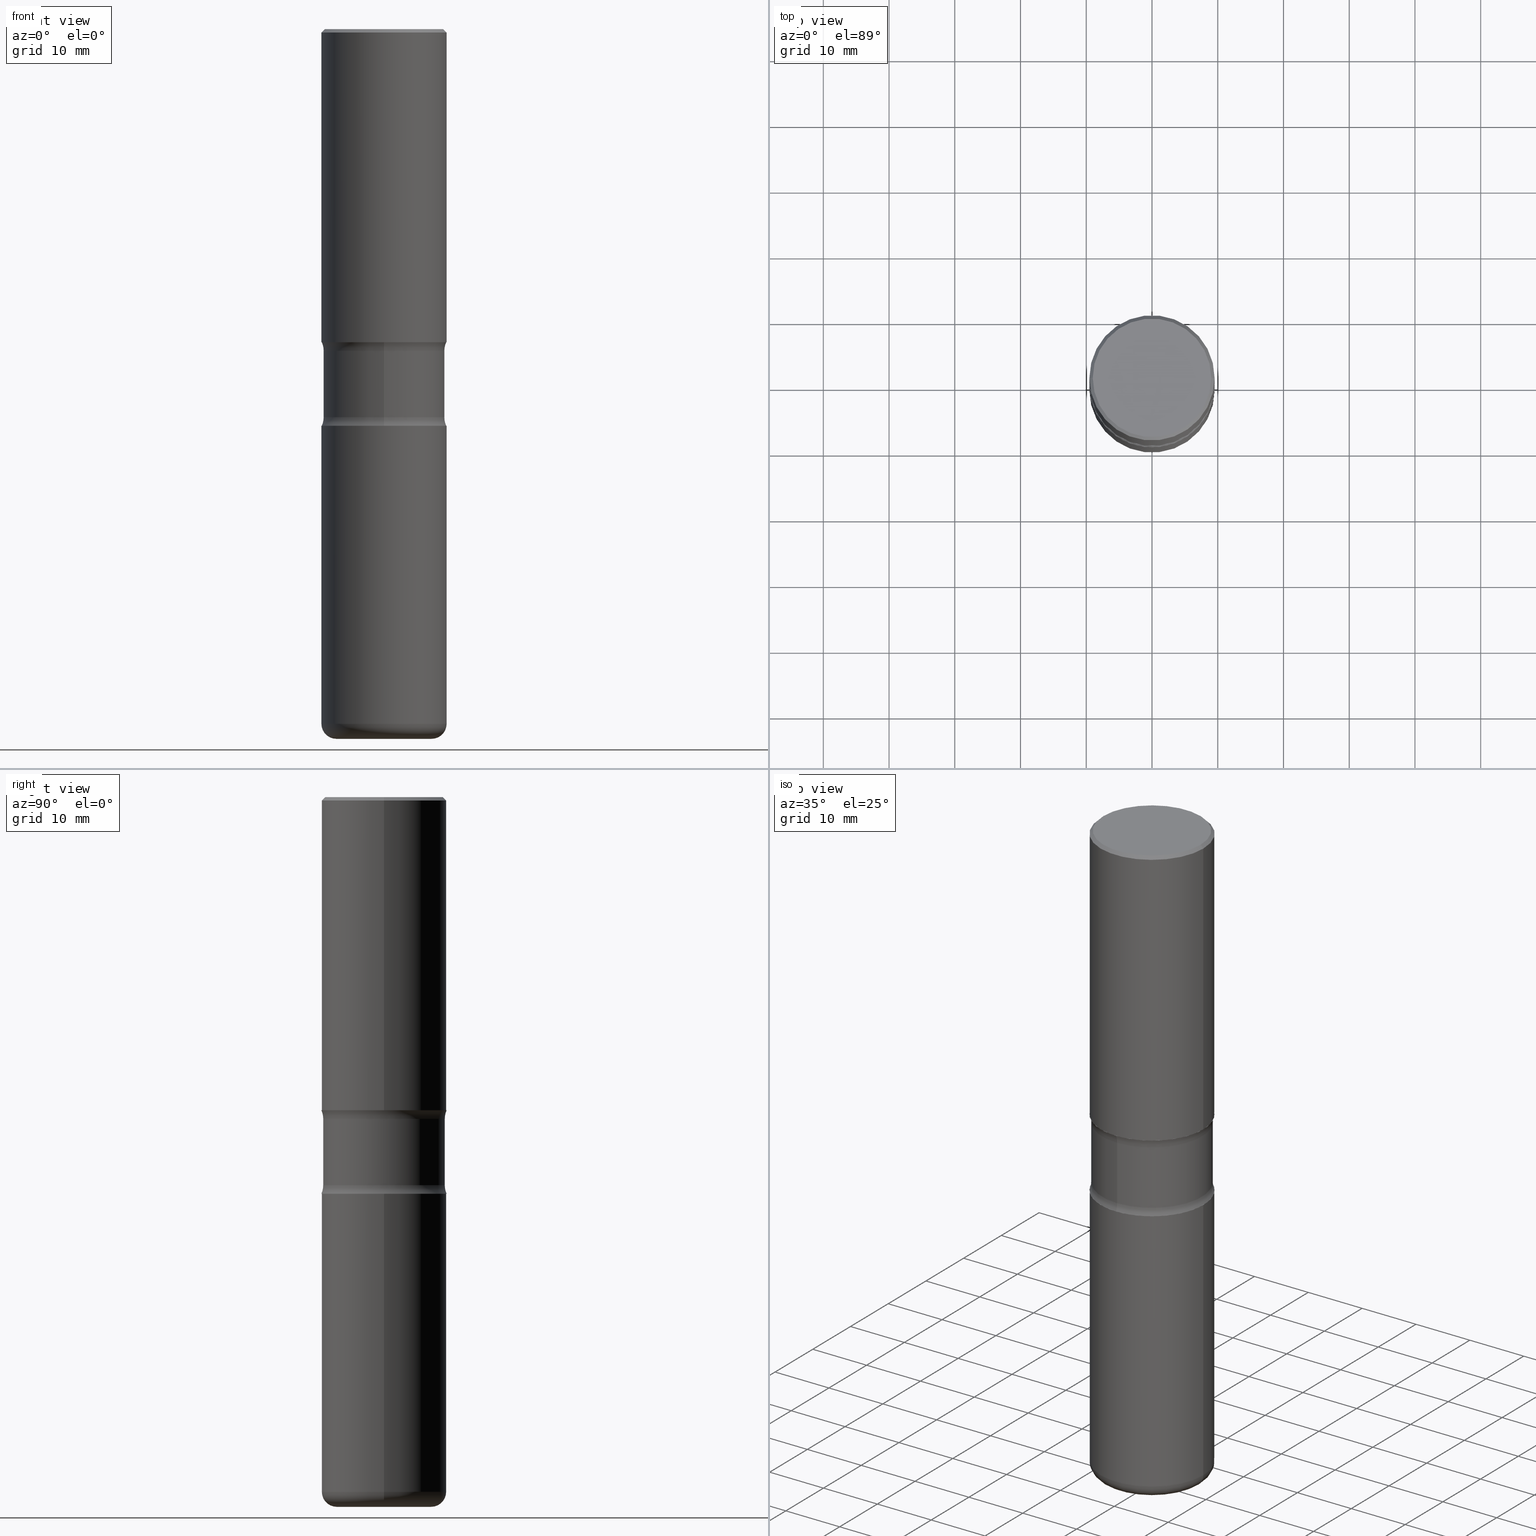
[diagram: canonical four-view strip — front | top / right | iso, engineering-drawing reading convention]
A machine part, canonical four-view strip (front | top / right | iso — engineering-drawing reading convention). The complete STEP part file that produces these views, byte-faithful:
ISO-10303-21;
HEADER;
FILE_DESCRIPTION (( 'STEP AP203' ),
    '1' );
FILE_NAME ('34026.STEP',
    '2024-03-01T22:59:05',
    ( '' ),
    ( '' ),
    'SwSTEP 2.0',
    'SolidWorks 2023',
    '' );
FILE_SCHEMA (( 'CONFIG_CONTROL_DESIGN' ));
ENDSEC;

DATA;
#1 = AXIS2_PLACEMENT_3D ( 'NONE', #479, #169, #507 ) ;
#2 = DIRECTION ( 'NONE',  ( 6.982962677686265922E-15, 1.000000000000000000, -3.002030762268421058E-15 ) ) ;
#3 = LOCAL_TIME ( 17, 59, 5.000000000000000000, #155 ) ;
#4 = DIRECTION ( 'NONE',  ( 2.460380973374126389E-29, -3.470126266680665129E-15, -1.000000000000000000 ) ) ;
#5 = ORIENTED_EDGE ( 'NONE', *, *, #53, .T. ) ;
#6 = DIRECTION ( 'NONE',  ( 1.000000000000000000, -6.982962677686265922E-15, 4.876176775795935793E-29 ) ) ;
#7 = ORIENTED_EDGE ( 'NONE', *, *, #220, .F. ) ;
#8 = CARTESIAN_POINT ( 'NONE',  ( 4.890937612370289799E-31, -6.982962677686315028E-17, -0.02000000000000006981 ) ) ;
#9 = AXIS2_PLACEMENT_3D ( 'NONE', #348, #555, #299 ) ;
#10 = AXIS2_PLACEMENT_3D ( 'NONE', #395, #97, #89 ) ;
#11 = EDGE_LOOP ( 'NONE', ( #213, #389, #148, #196 ) ) ;
#12 = DIRECTION ( 'NONE',  ( 2.460380973374125828E-29, -3.470126266680665523E-15, -1.000000000000000000 ) ) ;
#13 = FACE_OUTER_BOUND ( 'NONE', #165, .T. ) ;
#14 = PLANE ( 'NONE',  #72 ) ;
#15 = APPROVAL_DATE_TIME ( #549, #113 ) ;
#16 = CARTESIAN_POINT ( 'NONE',  ( 4.577797928002637344E-29, -6.557205046412139920E-15, -1.875000000000000444 ) ) ;
#17 = DIRECTION ( 'NONE',  ( 2.460380973374126389E-29, -3.470126266680665129E-15, -1.000000000000000000 ) ) ;
#18 = AXIS2_PLACEMENT_3D ( 'NONE', #223, #326, #369 ) ;
#19 = ORIENTED_EDGE ( 'NONE', *, *, #173, .T. ) ;
#20 = ORGANIZATION ( 'UNSPECIFIED', 'UNSPECIFIED', '' ) ;
#21 = DIRECTION ( 'NONE',  ( 2.460380973374126389E-29, -3.470126266680665129E-15, -1.000000000000000000 ) ) ;
#22 = EDGE_CURVE ( 'NONE', #209, #45, #68, .T. ) ;
#23 = VERTEX_POINT ( 'NONE', #226 ) ;
#24 = CALENDAR_DATE ( 2024, 1, 3 ) ;
#25 = CARTESIAN_POINT ( 'NONE',  ( 1.039324242628683054E-28, -1.483879569008337040E-14, -4.250000000000000000 ) ) ;
#26 = CC_DESIGN_PERSON_AND_ORGANIZATION_ASSIGNMENT ( #455, #75, ( #81 ) ) ;
#27 = DIRECTION ( 'NONE',  ( 1.000000000000000000, -6.982962677686273021E-15, 0.000000000000000000 ) ) ;
#28 = DIRECTION ( 'NONE',  ( 2.445468806185136597E-29, -3.491481338843145583E-15, -1.000000000000000000 ) ) ;
#29 = PERSON_AND_ORGANIZATION ( #381, #20 ) ;
#30 = CARTESIAN_POINT ( 'NONE',  ( -2.534954010176535209E-15, -0.3640000000000067071, -1.926273774973177089 ) ) ;
#31 = EDGE_CURVE ( 'NONE', #519, #283, #438, .T. ) ;
#32 = EDGE_LOOP ( 'NONE', ( #429, #47 ) ) ;
#33 = AXIS2_PLACEMENT_3D ( 'NONE', #537, #109, #144 ) ;
#34 = CC_DESIGN_APPROVAL ( #113, ( #217 ) ) ;
#35 = APPLICATION_PROTOCOL_DEFINITION ( 'international standard', 'config_control_design', 1994, #243 ) ;
#36 = ORIENTED_EDGE ( 'NONE', *, *, #532, .T. ) ;
#37 = DIRECTION ( 'NONE',  ( -2.445468806185136597E-29, 3.491481338843145583E-15, 1.000000000000000000 ) ) ;
#38 = VERTEX_POINT ( 'NONE', #465 ) ;
#39 = ADVANCED_FACE ( 'NONE', ( #330 ), #491, .T. ) ;
#40 = CARTESIAN_POINT ( 'NONE',  ( 5.807988414689700538E-29, -8.292268179752471696E-15, -2.375000000000000000 ) ) ;
#41 = ORIENTED_EDGE ( 'NONE', *, *, #556, .T. ) ;
#42 = CIRCLE ( 'NONE', #431, 0.2850000000000004197 ) ;
#43 = VERTEX_POINT ( 'NONE', #73 ) ;
#44 = ORIENTED_EDGE ( 'NONE', *, *, #441, .F. ) ;
#45 = VERTEX_POINT ( 'NONE', #502 ) ;
#46 = CARTESIAN_POINT ( 'NONE',  ( 5.807988414689700538E-29, -8.292268179752471696E-15, -2.375000000000000000 ) ) ;
#47 = ORIENTED_EDGE ( 'NONE', *, *, #153, .F. ) ;
#48 = AXIS2_PLACEMENT_3D ( 'NONE', #16, #365, #324 ) ;
#49 = DIRECTION ( 'NONE',  ( 7.105427357601001859E-15, 1.000000000000000000, -3.491481338843145583E-15 ) ) ;
#50 = CIRCLE ( 'NONE', #414, 0.3639999999999999902 ) ;
#51 = ORIENTED_EDGE ( 'NONE', *, *, #532, .F. ) ;
#52 = ORIENTED_EDGE ( 'NONE', *, *, #390, .F. ) ;
#53 = EDGE_CURVE ( 'NONE', #38, #43, #65, .T. ) ;
#54 = FACE_OUTER_BOUND ( 'NONE', #32, .T. ) ;
#55 = DIRECTION ( 'NONE',  ( 6.982962677686265922E-15, 1.000000000000000000, -3.470126266680665129E-15 ) ) ;
#56 = PERSON_AND_ORGANIZATION_ROLE ( 'design_owner' ) ;
#57 = EDGE_CURVE ( 'NONE', #496, #396, #509, .T. ) ;
#58 = EDGE_CURVE ( 'NONE', #253, #257, #80, .T. ) ;
#59 = FACE_OUTER_BOUND ( 'NONE', #347, .T. ) ;
#60 = AXIS2_PLACEMENT_3D ( 'NONE', #161, #297, #294 ) ;
#61 = CIRCLE ( 'NONE', #166, 0.3750000000000002776 ) ;
#62 = ORIENTED_EDGE ( 'NONE', *, *, #288, .F. ) ;
#63 = CARTESIAN_POINT ( 'NONE',  ( -3.354783520910221448E-15, -0.4890000000000080949, -2.323726225026820469 ) ) ;
#64 = DATE_AND_TIME ( #121, #505 ) ;
#65 = LINE ( 'NONE', #536, #357 ) ;
#66 = DIRECTION ( 'NONE',  ( -1.000000000000000000, 6.982962677686265922E-15, -4.883557194083112340E-29 ) ) ;
#67 = COORDINATED_UNIVERSAL_TIME_OFFSET ( 5, 0, .BEHIND. ) ;
#68 = LINE ( 'NONE', #318, #114 ) ;
#69 = CARTESIAN_POINT ( 'NONE',  ( 3.414668749388640446E-15, 0.4889999999999918301, -2.323726225026824022 ) ) ;
#70 = DIRECTION ( 'NONE',  ( -2.445468806185136597E-29, 3.491481338843145583E-15, 1.000000000000000000 ) ) ;
#71 = CARTESIAN_POINT ( 'NONE',  ( 4.585254011597131679E-29, -6.546527510330899496E-15, -1.875000000000000444 ) ) ;
#72 = AXIS2_PLACEMENT_3D ( 'NONE', #495, #274, #225 ) ;
#73 = CARTESIAN_POINT ( 'NONE',  ( -0.3750000000000002776, -8.743880015569600564E-15, -2.375000000000000000 ) ) ;
#74 = TOROIDAL_SURFACE ( 'NONE', #302, 0.4889999999999999347, 0.1250000000000000555 ) ;
#75 = PERSON_AND_ORGANIZATION_ROLE ( 'creator' ) ;
#76 = PRODUCT_DEFINITION ( 'UNKNOWN', '', #81, #368 ) ;
#77 = CARTESIAN_POINT ( 'NONE',  ( -2.534954010176524559E-15, -0.3640000000000081504, -2.323726225026820913 ) ) ;
#78 = PERSON_AND_ORGANIZATION_ROLE ( 'creator' ) ;
#79 = EDGE_CURVE ( 'NONE', #38, #396, #319, .T. ) ;
#80 = CIRCLE ( 'NONE', #229, 0.3750000000000000555 ) ;
#81 = PRODUCT_DEFINITION_FORMATION_WITH_SPECIFIED_SOURCE ( 'ANY', '', #461, .NOT_KNOWN. ) ;
#82 = DIRECTION ( 'NONE',  ( 1.000000000000000000, -6.982962677686265922E-15, 0.000000000000000000 ) ) ;
#83 =( NAMED_UNIT ( * ) PLANE_ANGLE_UNIT ( ) SI_UNIT ( $, .RADIAN. ) );
#84 = DIRECTION ( 'NONE',  ( 2.460380973374126389E-29, -3.470126266680665129E-15, -1.000000000000000000 ) ) ;
#85 = CARTESIAN_POINT ( 'NONE',  ( 0.3750000000000000555, -2.642516375941188029E-15, -0.02000000000000006981 ) ) ;
#86 = TOROIDAL_SURFACE ( 'NONE', #158, 0.2850000000000004197, 0.09000000000000016320 ) ;
#87 = DIRECTION ( 'NONE',  ( 6.982962677686266711E-15, 1.000000000000000000, -3.642463991552348591E-15 ) ) ;
#88 = AXIS2_PLACEMENT_3D ( 'NONE', #235, #342, #275 ) ;
#89 = DIRECTION ( 'NONE',  ( 6.982962677686265922E-15, 1.000000000000000000, -3.470126266680665129E-15 ) ) ;
#90 = ADVANCED_FACE ( 'NONE', ( #426 ), #424, .T. ) ;
#91 = ORIENTED_EDGE ( 'NONE', *, *, #288, .T. ) ;
#92 = DIRECTION ( 'NONE',  ( -1.000000000000000000, 6.982962677686265922E-15, 0.000000000000000000 ) ) ;
#93 = AXIS2_PLACEMENT_3D ( 'NONE', #237, #303, #197 ) ;
#94 = VERTEX_POINT ( 'NONE', #290 ) ;
#95 = DATE_AND_TIME ( #118, #177 ) ;
#96 = LOCAL_TIME ( 17, 59, 5.000000000000000000, #67 ) ;
#97 = DIRECTION ( 'NONE',  ( 2.460380973374126389E-29, -3.470126266680665129E-15, -1.000000000000000000 ) ) ;
#98 = PLANE ( 'NONE',  #425 ) ;
#99 = ORIENTED_EDGE ( 'NONE', *, *, #22, .F. ) ;
#100 = CARTESIAN_POINT ( 'NONE',  ( 5.807988414689700538E-29, -8.292268179752471696E-15, -2.375000000000000000 ) ) ;
#101 = CARTESIAN_POINT ( 'NONE',  ( 0.2850000000000004197, -1.682894005322395705E-14, -4.250000000000000000 ) ) ;
#102 = ORIENTED_EDGE ( 'NONE', *, *, #57, .F. ) ;
#103 = FACE_OUTER_BOUND ( 'NONE', #134, .T. ) ;
#104 = VECTOR ( 'NONE', #317, 39.37007874015748143 ) ;
#105 = DIRECTION ( 'NONE',  ( -2.445468806185136597E-29, 3.491481338843145583E-15, 1.000000000000000000 ) ) ;
#106 = PRODUCT_RELATED_PRODUCT_CATEGORY ( 'detail', '', ( #461 ) ) ;
#107 = CARTESIAN_POINT ( 'NONE',  ( 0.000000000000000000, 0.000000000000000000, 0.000000000000000000 ) ) ;
#108 = EDGE_CURVE ( 'NONE', #411, #423, #281, .T. ) ;
#109 = DIRECTION ( 'NONE',  ( 2.460380973374126389E-29, -3.470126266680665129E-15, -1.000000000000000000 ) ) ;
#110 = CARTESIAN_POINT ( 'NONE',  ( 0.3750000000000001665, -2.618611004132351200E-15, 1.828566290923476763E-29 ) ) ;
#111 = CARTESIAN_POINT ( 'NONE',  ( 3.414668749388630980E-15, 0.4889999999999932734, -1.926273774973179975 ) ) ;
#112 = EDGE_CURVE ( 'NONE', #209, #519, #492, .T. ) ;
#113 = APPROVAL ( #409, 'UNSPECIFIED' ) ;
#114 = VECTOR ( 'NONE', #190, 39.37007874015748143 ) ;
#115 = VECTOR ( 'NONE', #523, 39.37007874015748143 ) ;
#116 = ADVANCED_FACE ( 'NONE', ( #252 ), #204, .T. ) ;
#117 = CYLINDRICAL_SURFACE ( 'NONE', #476, 0.3750000000000001665 ) ;
#118 = CALENDAR_DATE ( 2024, 1, 3 ) ;
#119 = ORIENTED_EDGE ( 'NONE', *, *, #249, .T. ) ;
#120 = MANIFOLD_SOLID_BREP ( 'Body-Move/Copy2[4]', #126 ) ;
#121 = CALENDAR_DATE ( 2024, 1, 3 ) ;
#122 = MANIFOLD_SOLID_BREP ( 'Body-Move/Copy2[2]', #520 ) ;
#123 = CARTESIAN_POINT ( 'NONE',  ( 0.000000000000000000, 0.000000000000000000, 0.000000000000000000 ) ) ;
#124 = CARTESIAN_POINT ( 'NONE',  ( 2.618611004132396954E-15, 0.3749999999999938383, -1.875000000000001776 ) ) ;
#125 = ORIENTED_EDGE ( 'NONE', *, *, #22, .T. ) ;
#126 = CLOSED_SHELL ( 'NONE', ( #376, #475, #366, #516, #515, #316, #341, #198 ) ) ;
#127 = CARTESIAN_POINT ( 'NONE',  ( -2.572686749164280949E-15, -0.3750000000000068834, -1.874999999999998890 ) ) ;
#128 = EDGE_CURVE ( 'NONE', #94, #253, #514, .T. ) ;
#129 = DIRECTION ( 'NONE',  ( -2.445468806185136597E-29, 3.491481338843145583E-15, 1.000000000000000000 ) ) ;
#130 = AXIS2_PLACEMENT_3D ( 'NONE', #453, #322, #230 ) ;
#131 = APPROVAL_PERSON_ORGANIZATION ( #29, #113, #494 ) ;
#132 = ORIENTED_EDGE ( 'NONE', *, *, #268, .T. ) ;
#133 = DIRECTION ( 'NONE',  ( 6.982962677686265922E-15, 1.000000000000000000, -3.470126266680665129E-15 ) ) ;
#134 = EDGE_LOOP ( 'NONE', ( #135, #184, #19, #261 ) ) ;
#135 = ORIENTED_EDGE ( 'NONE', *, *, #31, .F. ) ;
#136 = DIRECTION ( 'NONE',  ( 6.982962677686266711E-15, 1.000000000000000000, -3.642463991552348591E-15 ) ) ;
#137 = ADVANCED_FACE ( 'NONE', ( #503 ), #387, .T. ) ;
#138 = CIRCLE ( 'NONE', #526, 0.3750000000000002776 ) ;
#139 = CIRCLE ( 'NONE', #463, 0.09000000000000020484 ) ;
#140 = DIRECTION ( 'NONE',  ( 2.445468806185136597E-29, -3.491481338843145583E-15, -1.000000000000000000 ) ) ;
#141 = DIRECTION ( 'NONE',  ( -2.445468806185136597E-29, 3.491481338843145583E-15, 1.000000000000000000 ) ) ;
#142 = DIRECTION ( 'NONE',  ( 1.000000000000000000, -6.982962677686265922E-15, 0.000000000000000000 ) ) ;
#143 = ORIENTED_EDGE ( 'NONE', *, *, #524, .T. ) ;
#144 = DIRECTION ( 'NONE',  ( 6.982962677686265922E-15, 1.000000000000000000, -3.002030762268421058E-15 ) ) ;
#145 = EDGE_CURVE ( 'NONE', #423, #45, #147, .T. ) ;
#146 = APPLICATION_PROTOCOL_DEFINITION ( 'international standard', 'config_control_design', 1994, #459 ) ;
#147 = CIRCLE ( 'NONE', #207, 0.1250000000000000278 ) ;
#148 = ORIENTED_EDGE ( 'NONE', *, *, #399, .T. ) ;
#149 = FACE_OUTER_BOUND ( 'NONE', #236, .T. ) ;
#150 = CARTESIAN_POINT ( 'NONE',  ( 0.000000000000000000, 0.000000000000000000, 0.000000000000000000 ) ) ;
#151 = UNCERTAINTY_MEASURE_WITH_UNIT (LENGTH_MEASURE( 1.000000000000000082E-05 ), #501, 'distance_accuracy_value', 'NONE');
#152 = PRODUCT_DEFINITION_SHAPE ( 'NONE', 'NONE',  #76 ) ;
#153 = EDGE_CURVE ( 'NONE', #23, #241, #300, .T. ) ;
#154 = EDGE_CURVE ( 'NONE', #519, #162, #362, .T. ) ;
#155 = COORDINATED_UNIVERSAL_TIME_OFFSET ( 5, 0, .BEHIND. ) ;
#156 = CARTESIAN_POINT ( 'NONE',  ( 1.017315023373016887E-28, -1.452456236958748398E-14, -4.160000000000000142 ) ) ;
#157 = COORDINATED_UNIVERSAL_TIME_OFFSET ( 5, 0, .BEHIND. ) ;
#158 = AXIS2_PLACEMENT_3D ( 'NONE', #391, #551, #470 ) ;
#159 = CARTESIAN_POINT ( 'NONE',  ( 0.2850000000000004197, -1.651470673272807378E-14, -4.160000000000000142 ) ) ;
#160 =( GEOMETRIC_REPRESENTATION_CONTEXT ( 3 ) GLOBAL_UNCERTAINTY_ASSIGNED_CONTEXT ( ( #151 ) ) GLOBAL_UNIT_ASSIGNED_CONTEXT ( ( #501, #83, #336 ) ) REPRESENTATION_CONTEXT ( 'NONE', 'WORKASPACE' ) );
#161 = CARTESIAN_POINT ( 'NONE',  ( 4.703950948379710498E-29, -6.735131519738438150E-15, -1.926273774973178421 ) ) ;
#162 = VERTEX_POINT ( 'NONE', #77 ) ;
#163 = DIRECTION ( 'NONE',  ( -0.7071067811865471286, 2.468850131082252722E-15, -0.7071067811865479058 ) ) ;
#164 = CIRCLE ( 'NONE', #130, 0.3549999999999999822 ) ;
#165 = EDGE_LOOP ( 'NONE', ( #293, #91, #125, #337 ) ) ;
#166 = AXIS2_PLACEMENT_3D ( 'NONE', #449, #212, #398 ) ;
#167 = DIRECTION ( 'NONE',  ( 1.000000000000000000, -6.982962677686265922E-15, 0.000000000000000000 ) ) ;
#168 = CC_DESIGN_PERSON_AND_ORGANIZATION_ASSIGNMENT ( #445, #56, ( #461 ) ) ;
#169 = DIRECTION ( 'NONE',  ( 2.460380973374126389E-29, -3.470126266680665129E-15, -1.000000000000000000 ) ) ;
#170 = DIRECTION ( 'NONE',  ( 1.000000000000000000, -6.982962677686264344E-15, 0.000000000000000000 ) ) ;
#171 = CARTESIAN_POINT ( 'NONE',  ( 5.682599997417436343E-29, -8.113246751261578348E-15, -2.323726225026822245 ) ) ;
#172 = VERTEX_POINT ( 'NONE', #276 ) ;
#173 = EDGE_CURVE ( 'NONE', #209, #295, #216, .T. ) ;
#174 = ORIENTED_EDGE ( 'NONE', *, *, #392, .T. ) ;
#175 = LINE ( 'NONE', #385, #270 ) ;
#176 = AXIS2_PLACEMENT_3D ( 'NONE', #150, #105, #454 ) ;
#177 = LOCAL_TIME ( 17, 59, 5.000000000000000000, #157 ) ;
#178 = DIRECTION ( 'NONE',  ( 1.000000000000000000, -6.982962677686265922E-15, 4.876176775795935793E-29 ) ) ;
#179 = CARTESIAN_POINT ( 'NONE',  ( 2.618611004132410364E-15, 0.3749999999999920619, -2.375000000000001776 ) ) ;
#180 = CYLINDRICAL_SURFACE ( 'NONE', #527, 0.3639999999999999902 ) ;
#181 = FACE_OUTER_BOUND ( 'NONE', #444, .T. ) ;
#182 = CIRCLE ( 'NONE', #504, 0.3750000000000002776 ) ;
#183 = DIRECTION ( 'NONE',  ( -2.445468806185136597E-29, 3.491481338843145583E-15, 1.000000000000000000 ) ) ;
#184 = ORIENTED_EDGE ( 'NONE', *, *, #112, .F. ) ;
#185 = CC_DESIGN_PERSON_AND_ORGANIZATION_ASSIGNMENT ( #232, #418, ( #81 ) ) ;
#186 = CARTESIAN_POINT ( 'NONE',  ( 0.3750000000000004996, -1.714317337371984031E-14, -4.160000000000000142 ) ) ;
#187 = DIRECTION ( 'NONE',  ( 6.982962677686265922E-15, 1.000000000000000000, -3.470126266680665523E-15 ) ) ;
#188 = ORIENTED_EDGE ( 'NONE', *, *, #259, .T. ) ;
#189 = AXIS2_PLACEMENT_3D ( 'NONE', #284, #28, #466 ) ;
#190 = DIRECTION ( 'NONE',  ( 2.460380973374126389E-29, -3.470126266680665523E-15, -1.000000000000000000 ) ) ;
#191 = EDGE_CURVE ( 'NONE', #411, #162, #469, .T. ) ;
#192 = CARTESIAN_POINT ( 'NONE',  ( 4.890937612370289799E-31, -6.982962677686315028E-17, -0.02000000000000006981 ) ) ;
#193 = AXIS2_PLACEMENT_3D ( 'NONE', #313, #183, #533 ) ;
#194 = EDGE_LOOP ( 'NONE', ( #478, #5, #408, #471 ) ) ;
#195 = DIRECTION ( 'NONE',  ( 6.982962677686265922E-15, 1.000000000000000000, -3.470126266680665129E-15 ) ) ;
#196 = ORIENTED_EDGE ( 'NONE', *, *, #266, .F. ) ;
#197 = DIRECTION ( 'NONE',  ( 1.000000000000000000, -6.982962677686266711E-15, 4.883557194083113462E-29 ) ) ;
#198 = ADVANCED_FACE ( 'NONE', ( #13 ), #545, .T. ) ;
#199 = PLANE ( 'NONE',  #378 ) ;
#200 = EDGE_LOOP ( 'NONE', ( #433, #447 ) ) ;
#201 = CIRCLE ( 'NONE', #292, 0.3750000000000003886 ) ;
#202 = TOROIDAL_SURFACE ( 'NONE', #403, 0.4889999999999999347, 0.1250000000000000555 ) ;
#203 = ADVANCED_FACE ( 'NONE', ( #149 ), #117, .T. ) ;
#204 = CYLINDRICAL_SURFACE ( 'NONE', #258, 0.3750000000000003886 ) ;
#205 = ORIENTED_EDGE ( 'NONE', *, *, #259, .F. ) ;
#206 = FACE_OUTER_BOUND ( 'NONE', #485, .T. ) ;
#207 = AXIS2_PLACEMENT_3D ( 'NONE', #69, #490, #412 ) ;
#208 = DIRECTION ( 'NONE',  ( -2.445468806185136597E-29, 3.491481338843145583E-15, 1.000000000000000000 ) ) ;
#209 = VERTEX_POINT ( 'NONE', #467 ) ;
#210 = EDGE_CURVE ( 'NONE', #94, #215, #164, .T. ) ;
#211 = FACE_OUTER_BOUND ( 'NONE', #306, .T. ) ;
#212 = DIRECTION ( 'NONE',  ( 2.460380973374126389E-29, -3.470126266680665129E-15, -1.000000000000000000 ) ) ;
#213 = ORIENTED_EDGE ( 'NONE', *, *, #53, .F. ) ;
#214 = FACE_OUTER_BOUND ( 'NONE', #434, .T. ) ;
#215 = VERTEX_POINT ( 'NONE', #379 ) ;
#216 = CIRCLE ( 'NONE', #333, 0.1250000000000001110 ) ;
#217 = SECURITY_CLASSIFICATION ( '', '', #285 ) ;
#218 = CARTESIAN_POINT ( 'NONE',  ( 4.710642428869395314E-29, -6.725548938821792843E-15, -1.926273774973178421 ) ) ;
#219 = PLANE ( 'NONE',  #364 ) ;
#220 = EDGE_CURVE ( 'NONE', #396, #38, #201, .T. ) ;
#221 = DIRECTION ( 'NONE',  ( 6.860497997771532351E-15, 1.000000000000000000, 0.000000000000000000 ) ) ;
#222 = FACE_OUTER_BOUND ( 'NONE', #400, .T. ) ;
#223 = CARTESIAN_POINT ( 'NONE',  ( 4.585254011597131679E-29, -6.546527510330899496E-15, -1.875000000000000444 ) ) ;
#224 = PERSON_AND_ORGANIZATION ( #381, #20 ) ;
#225 = DIRECTION ( 'NONE',  ( -1.000000000000000000, 6.982962677686265922E-15, -4.876176775795935793E-29 ) ) ;
#226 = CARTESIAN_POINT ( 'NONE',  ( -0.3750000000000002776, -6.436433094535016571E-16, -1.875000000000000444 ) ) ;
#227 = PERSON_AND_ORGANIZATION ( #381, #20 ) ;
#228 = ADVANCED_FACE ( 'NONE', ( #222 ), #14, .T. ) ;
#229 = AXIS2_PLACEMENT_3D ( 'NONE', #192, #547, #534 ) ;
#230 = DIRECTION ( 'NONE',  ( 1.000000000000000000, -6.982962677686265922E-15, 4.876231632511988183E-29 ) ) ;
#231 = CIRCLE ( 'NONE', #484, 0.2850000000000004197 ) ;
#232 = PERSON_AND_ORGANIZATION ( #381, #20 ) ;
#233 = DIRECTION ( 'NONE',  ( -2.445468806185136597E-29, 3.491481338843145583E-15, 1.000000000000000000 ) ) ;
#234 = ORIENTED_EDGE ( 'NONE', *, *, #392, .F. ) ;
#235 = CARTESIAN_POINT ( 'NONE',  ( 0.000000000000000000, 0.000000000000000000, 0.000000000000000000 ) ) ;
#236 = EDGE_LOOP ( 'NONE', ( #41, #483, #460, #560 ) ) ;
#237 = CARTESIAN_POINT ( 'NONE',  ( 1.017315023373016887E-28, -1.452456236958748398E-14, -4.160000000000000142 ) ) ;
#238 = DIRECTION ( 'NONE',  ( -2.445468806185136597E-29, 3.491481338843145583E-15, 1.000000000000000000 ) ) ;
#239 = AXIS2_PLACEMENT_3D ( 'NONE', #159, #421, #27 ) ;
#240 = APPROVAL_PERSON_ORGANIZATION ( #406, #331, #332 ) ;
#241 = VERTEX_POINT ( 'NONE', #410 ) ;
#242 = CARTESIAN_POINT ( 'NONE',  ( 2.478951750578624209E-15, 0.3549999999999999822, -1.233073106554166000E-15 ) ) ;
#243 = APPLICATION_CONTEXT ( 'configuration controlled 3d designs of mechanical parts and assemblies' ) ;
#244 = FACE_OUTER_BOUND ( 'NONE', #301, .T. ) ;
#245 = ORIENTED_EDGE ( 'NONE', *, *, #145, .F. ) ;
#246 = DIRECTION ( 'NONE',  ( 0.7071067811865471286, -7.319954787623254468E-15, -0.7071067811865479058 ) ) ;
#247 = EDGE_CURVE ( 'NONE', #295, #283, #363, .T. ) ;
#248 = EDGE_LOOP ( 'NONE', ( #188, #367, #7, #102 ) ) ;
#249 = EDGE_CURVE ( 'NONE', #172, #43, #138, .T. ) ;
#250 = CIRCLE ( 'NONE', #9, 0.3639999999999999902 ) ;
#251 = AXIS2_PLACEMENT_3D ( 'NONE', #46, #267, #136 ) ;
#252 = FACE_OUTER_BOUND ( 'NONE', #194, .T. ) ;
#253 = VERTEX_POINT ( 'NONE', #371 ) ;
#254 = FACE_OUTER_BOUND ( 'NONE', #427, .T. ) ;
#255 = ORIENTED_EDGE ( 'NONE', *, *, #210, .F. ) ;
#256 = PLANE ( 'NONE',  #380 ) ;
#257 = VERTEX_POINT ( 'NONE', #542 ) ;
#258 = AXIS2_PLACEMENT_3D ( 'NONE', #123, #518, #384 ) ;
#259 = EDGE_CURVE ( 'NONE', #496, #383, #42, .T. ) ;
#260 = CIRCLE ( 'NONE', #493, 0.3750000000000002776 ) ;
#261 = ORIENTED_EDGE ( 'NONE', *, *, #247, .T. ) ;
#262 = APPROVAL_DATE_TIME ( #95, #529 ) ;
#263 = DIRECTION ( 'NONE',  ( 6.982962677686265922E-15, 1.000000000000000000, -3.752538452835526126E-15 ) ) ;
#264 = CARTESIAN_POINT ( 'NONE',  ( -0.2850000000000004197, -1.249951557267119744E-14, -4.160000000000000142 ) ) ;
#265 = ORIENTED_EDGE ( 'NONE', *, *, #419, .T. ) ;
#266 = EDGE_CURVE ( 'NONE', #43, #172, #182, .T. ) ;
#267 = DIRECTION ( 'NONE',  ( 2.460380973374126389E-29, -3.470126266680665129E-15, -1.000000000000000000 ) ) ;
#268 = EDGE_CURVE ( 'NONE', #162, #45, #250, .T. ) ;
#269 = CARTESIAN_POINT ( 'NONE',  ( -2.497221271188732671E-15, -0.3640000000000148117, -4.249999999999999112 ) ) ;
#270 = VECTOR ( 'NONE', #163, 39.37007874015748143 ) ;
#271 = CIRCLE ( 'NONE', #251, 0.3750000000000002776 ) ;
#272 = CARTESIAN_POINT ( 'NONE',  ( -3.354783520910231309E-15, -0.4890000000000066516, -1.926273774973176645 ) ) ;
#273 = DATE_AND_TIME ( #500, #96 ) ;
#274 = DIRECTION ( 'NONE',  ( 2.438088387897960049E-29, -3.491481338843145188E-15, -1.000000000000000000 ) ) ;
#275 = DIRECTION ( 'NONE',  ( 1.000000000000000000, 0.000000000000000000, 0.000000000000000000 ) ) ;
#276 = CARTESIAN_POINT ( 'NONE',  ( 0.3750000000000002776, -1.091087918388482329E-14, -2.375000000000000000 ) ) ;
#277 = DIRECTION ( 'NONE',  ( -2.445468806185136877E-29, 3.491481338843145188E-15, 1.000000000000000000 ) ) ;
#278 = ORIENTED_EDGE ( 'NONE', *, *, #419, .F. ) ;
#279 = ADVANCED_FACE ( 'NONE', ( #552 ), #86, .T. ) ;
#280 = APPROVAL_DATE_TIME ( #273, #331 ) ;
#281 = CIRCLE ( 'NONE', #402, 0.3750000000000002776 ) ;
#282 = VECTOR ( 'NONE', #277, 39.37007874015748143 ) ;
#283 = VERTEX_POINT ( 'NONE', #127 ) ;
#284 = CARTESIAN_POINT ( 'NONE',  ( 4.890937612370289799E-31, -6.982962677686315028E-17, -0.02000000000000006981 ) ) ;
#285 = SECURITY_CLASSIFICATION_LEVEL ( 'unclassified' ) ;
#286 = CC_DESIGN_PERSON_AND_ORGANIZATION_ASSIGNMENT ( #227, #78, ( #76 ) ) ;
#287 = EDGE_LOOP ( 'NONE', ( #44, #335, #143, #52 ) ) ;
#288 = EDGE_CURVE ( 'NONE', #519, #209, #548, .T. ) ;
#289 = ORIENTED_EDGE ( 'NONE', *, *, #154, .T. ) ;
#290 = CARTESIAN_POINT ( 'NONE',  ( 0.3549999999999999822, -2.538996582575041048E-15, 1.280553747031877983E-17 ) ) ;
#291 = DIRECTION ( 'NONE',  ( -1.000000000000000000, 6.982962677686265922E-15, -4.876176775795935793E-29 ) ) ;
#292 = AXIS2_PLACEMENT_3D ( 'NONE', #156, #233, #142 ) ;
#293 = ORIENTED_EDGE ( 'NONE', *, *, #154, .F. ) ;
#294 = DIRECTION ( 'NONE',  ( 6.982962677686265922E-15, 1.000000000000000000, -3.752538452835526915E-15 ) ) ;
#295 = VERTEX_POINT ( 'NONE', #124 ) ;
#296 = ADVANCED_FACE ( 'NONE', ( #559 ), #199, .F. ) ;
#297 = DIRECTION ( 'NONE',  ( 2.460380973374126389E-29, -3.470126266680665129E-15, -1.000000000000000000 ) ) ;
#298 = ORIENTED_EDGE ( 'NONE', *, *, #173, .F. ) ;
#299 = DIRECTION ( 'NONE',  ( 6.982962677686265922E-15, 1.000000000000000000, -3.752538452835526126E-15 ) ) ;
#300 = CIRCLE ( 'NONE', #18, 0.3750000000000002776 ) ;
#301 = EDGE_LOOP ( 'NONE', ( #265, #489 ) ) ;
#302 = AXIS2_PLACEMENT_3D ( 'NONE', #218, #522, #133 ) ;
#303 = DIRECTION ( 'NONE',  ( -2.445468806185136597E-29, 3.491481338843145583E-15, 1.000000000000000000 ) ) ;
#304 = ORIENTED_EDGE ( 'NONE', *, *, #31, .T. ) ;
#305 = FACE_OUTER_BOUND ( 'NONE', #11, .T. ) ;
#306 = EDGE_LOOP ( 'NONE', ( #255, #310, #442, #550 ) ) ;
#307 = EDGE_LOOP ( 'NONE', ( #119, #528 ) ) ;
#308 = DIRECTION ( 'NONE',  ( 1.000000000000000000, -6.982962677686265922E-15, 0.000000000000000000 ) ) ;
#309 = CARTESIAN_POINT ( 'NONE',  ( -0.2850000000000004197, -1.233688800182709450E-14, -4.250000000000000000 ) ) ;
#310 = ORIENTED_EDGE ( 'NONE', *, *, #128, .T. ) ;
#311 = AXIS2_PLACEMENT_3D ( 'NONE', #63, #372, #221 ) ;
#312 = TOROIDAL_SURFACE ( 'NONE', #10, 0.4889999999999999347, 0.1250000000000000278 ) ;
#313 = CARTESIAN_POINT ( 'NONE',  ( -3.131554243005659264E-46, 4.471029511141341874E-32, 1.280553747030123384E-17 ) ) ;
#314 = ORIENTED_EDGE ( 'NONE', *, *, #315, .T. ) ;
#315 = EDGE_CURVE ( 'NONE', #215, #257, #175, .T. ) ;
#316 = ADVANCED_FACE ( 'NONE', ( #244 ), #428, .F. ) ;
#317 = DIRECTION ( 'NONE',  ( -2.445468806185136877E-29, 3.491481338843145188E-15, 1.000000000000000000 ) ) ;
#318 = CARTESIAN_POINT ( 'NONE',  ( 2.541798414677905228E-15, 0.3639999999999851688, -4.250000000000001776 ) ) ;
#319 = CIRCLE ( 'NONE', #437, 0.3750000000000003886 ) ;
#320 = DATE_AND_TIME ( #24, #3 ) ;
#321 = CC_DESIGN_SECURITY_CLASSIFICATION ( #217, ( #81 ) ) ;
#322 = DIRECTION ( 'NONE',  ( -2.445468806185136597E-29, 3.491481338843145583E-15, 1.000000000000000000 ) ) ;
#323 = ORIENTED_EDGE ( 'NONE', *, *, #108, .F. ) ;
#324 = DIRECTION ( 'NONE',  ( 6.982962677686266711E-15, 1.000000000000000000, -3.642463991552348591E-15 ) ) ;
#325 = ADVANCED_FACE ( 'NONE', ( #211 ), #554, .T. ) ;
#326 = DIRECTION ( 'NONE',  ( -2.445468806185136597E-29, 3.491481338843145583E-15, 1.000000000000000000 ) ) ;
#327 = APPROVAL_STATUS ( 'not_yet_approved' ) ;
#328 = CARTESIAN_POINT ( 'NONE',  ( 1.039324242628683054E-28, -1.483879569008337040E-14, -4.250000000000000000 ) ) ;
#329 = DIRECTION ( 'NONE',  ( 1.000000000000000000, -6.982962677686265922E-15, 0.000000000000000000 ) ) ;
#330 = FACE_OUTER_BOUND ( 'NONE', #287, .T. ) ;
#331 = APPROVAL ( #327, 'UNSPECIFIED' ) ;
#332 = APPROVAL_ROLE ( '' ) ;
#333 = AXIS2_PLACEMENT_3D ( 'NONE', #111, #66, #451 ) ;
#334 = TOROIDAL_SURFACE ( 'NONE', #350, 0.4889999999999999347, 0.1250000000000000278 ) ;
#335 = ORIENTED_EDGE ( 'NONE', *, *, #153, .T. ) ;
#336 =( NAMED_UNIT ( * ) SI_UNIT ( $, .STERADIAN. ) SOLID_ANGLE_UNIT ( ) );
#337 = ORIENTED_EDGE ( 'NONE', *, *, #268, .F. ) ;
#338 = DIRECTION ( 'NONE',  ( 1.000000000000000000, -6.982962677686264344E-15, 0.000000000000000000 ) ) ;
#339 = CLOSED_SHELL ( 'NONE', ( #116, #279, #228, #90, #356, #416 ) ) ;
#340 = CIRCLE ( 'NONE', #440, 0.3750000000000000555 ) ;
#341 = ADVANCED_FACE ( 'NONE', ( #59 ), #312, .F. ) ;
#342 = DIRECTION ( 'NONE',  ( 0.000000000000000000, 0.000000000000000000, 1.000000000000000000 ) ) ;
#343 = ORIENTED_EDGE ( 'NONE', *, *, #351, .F. ) ;
#344 = CARTESIAN_POINT ( 'NONE',  ( 5.807988414689700538E-29, -8.292268179752471696E-15, -2.375000000000000000 ) ) ;
#345 = ORIENTED_EDGE ( 'NONE', *, *, #420, .F. ) ;
#346 = CARTESIAN_POINT ( 'NONE',  ( 1.017315023373016887E-28, -1.452456236958748398E-14, -4.160000000000000142 ) ) ;
#347 = EDGE_LOOP ( 'NONE', ( #544, #278, #558, #174 ) ) ;
#348 = CARTESIAN_POINT ( 'NONE',  ( 5.681835394312626263E-29, -8.114341706426173465E-15, -2.323726225026822245 ) ) ;
#349 = AXIS2_PLACEMENT_3D ( 'NONE', #40, #443, #401 ) ;
#350 = AXIS2_PLACEMENT_3D ( 'NONE', #171, #17, #55 ) ;
#351 = EDGE_CURVE ( 'NONE', #215, #94, #450, .T. ) ;
#352 = CARTESIAN_POINT ( 'NONE',  ( 5.681835394312626263E-29, -8.114341706426173465E-15, -2.323726225026822245 ) ) ;
#353 = LINE ( 'NONE', #404, #115 ) ;
#354 = DIMENSIONAL_EXPONENTS ( 1.000000000000000000, 0.000000000000000000, 0.000000000000000000, 0.000000000000000000, 0.000000000000000000, 0.000000000000000000, 0.000000000000000000 ) ;
#355 = CARTESIAN_POINT ( 'NONE',  ( 4.890937612370289799E-31, -6.982962677686315028E-17, -0.02000000000000006981 ) ) ;
#356 = ADVANCED_FACE ( 'NONE', ( #305 ), #436, .T. ) ;
#357 = VECTOR ( 'NONE', #374, 39.37007874015748143 ) ;
#358 = AXIS2_PLACEMENT_3D ( 'NONE', #446, #208, #6 ) ;
#359 = DIRECTION ( 'NONE',  ( -2.438088387897960049E-29, 3.491481338843145188E-15, 1.000000000000000000 ) ) ;
#360 = DATE_TIME_ROLE ( 'classification_date' ) ;
#361 = ORIENTED_EDGE ( 'NONE', *, *, #57, .T. ) ;
#362 = LINE ( 'NONE', #269, #413 ) ;
#363 = CIRCLE ( 'NONE', #48, 0.3750000000000002776 ) ;
#364 = AXIS2_PLACEMENT_3D ( 'NONE', #405, #12, #187 ) ;
#365 = DIRECTION ( 'NONE',  ( 2.460380973374126389E-29, -3.470126266680665129E-15, -1.000000000000000000 ) ) ;
#366 = ADVANCED_FACE ( 'NONE', ( #254 ), #74, .F. ) ;
#367 = ORIENTED_EDGE ( 'NONE', *, *, #420, .T. ) ;
#368 = DESIGN_CONTEXT ( 'detailed design', #459, 'design' ) ;
#369 = DIRECTION ( 'NONE',  ( 1.000000000000000000, -6.982962677686265922E-15, 0.000000000000000000 ) ) ;
#370 = COORDINATED_UNIVERSAL_TIME_OFFSET ( 5, 0, .BEHIND. ) ;
#371 = CARTESIAN_POINT ( 'NONE',  ( 0.3750000000000000555, -2.642516375941188029E-15, -0.02000000000000006981 ) ) ;
#372 = DIRECTION ( 'NONE',  ( 1.000000000000000000, -6.860497997771530774E-15, 4.841060403831836621E-29 ) ) ;
#373 = APPROVAL_STATUS ( 'not_yet_approved' ) ;
#374 = DIRECTION ( 'NONE',  ( -2.445468806185136877E-29, 3.491481338843145188E-15, 1.000000000000000000 ) ) ;
#375 = ADVANCED_FACE ( 'NONE', ( #54 ), #256, .F. ) ;
#376 = ADVANCED_FACE ( 'NONE', ( #214 ), #180, .T. ) ;
#377 = CALENDAR_DATE ( 2024, 1, 3 ) ;
#378 = AXIS2_PLACEMENT_3D ( 'NONE', #242, #472, #291 ) ;
#379 = CARTESIAN_POINT ( 'NONE',  ( -0.3549999999999999822, 2.513866563967055464E-15, 1.280553747028377567E-17 ) ) ;
#380 = AXIS2_PLACEMENT_3D ( 'NONE', #397, #359, #178 ) ;
#381 = PERSON ( 'UNSPECIFIED', 'UNSPECIFIED', 'UNSPECIFIED', ('UNSPECIFIED'), ('UNSPECIFIED'), ('UNSPECIFIED') ) ;
#382 = LENGTH_MEASURE_WITH_UNIT ( LENGTH_MEASURE( 0.02539999999999999897 ), #543 );
#383 = VERTEX_POINT ( 'NONE', #309 ) ;
#384 = DIRECTION ( 'NONE',  ( 1.000000000000000000, -6.982962677686265922E-15, 4.876176775795935793E-29 ) ) ;
#385 = CARTESIAN_POINT ( 'NONE',  ( -0.3750000000000000555, 2.548781377355486718E-15, -0.02000000000000006981 ) ) ;
#386 = ORIENTED_EDGE ( 'NONE', *, *, #79, .F. ) ;
#387 = CONICAL_SURFACE ( 'NONE', #189, 0.3750000000000000555, 0.7853981633974477239 ) ;
#388 = APPROVAL_PERSON_ORGANIZATION ( #456, #529, #539 ) ;
#389 = ORIENTED_EDGE ( 'NONE', *, *, #79, .T. ) ;
#390 = EDGE_CURVE ( 'NONE', #257, #253, #340, .T. ) ;
#391 = CARTESIAN_POINT ( 'NONE',  ( 1.017315023373016887E-28, -1.452456236958748398E-14, -4.160000000000000142 ) ) ;
#392 = EDGE_CURVE ( 'NONE', #45, #162, #50, .T. ) ;
#393 = CARTESIAN_POINT ( 'NONE',  ( 1.042120273976618612E-28, -1.479875492977871743E-14, -4.250000000000000000 ) ) ;
#394 = EDGE_LOOP ( 'NONE', ( #345, #36, #361, #386 ) ) ;
#395 = CARTESIAN_POINT ( 'NONE',  ( 5.682599997417436343E-29, -8.113246751261578348E-15, -2.323726225026822245 ) ) ;
#396 = VERTEX_POINT ( 'NONE', #186 ) ;
#397 = CARTESIAN_POINT ( 'NONE',  ( 4.585254011597131679E-29, -6.546527510330899496E-15, -1.875000000000000444 ) ) ;
#398 = DIRECTION ( 'NONE',  ( 6.982962677686266711E-15, 1.000000000000000000, -3.642463991552348591E-15 ) ) ;
#399 = EDGE_CURVE ( 'NONE', #396, #172, #525, .T. ) ;
#400 = EDGE_LOOP ( 'NONE', ( #205, #51 ) ) ;
#401 = DIRECTION ( 'NONE',  ( -6.982962677686265922E-15, -1.000000000000000000, 3.470126266680665523E-15 ) ) ;
#402 = AXIS2_PLACEMENT_3D ( 'NONE', #510, #84, #87 ) ;
#403 = AXIS2_PLACEMENT_3D ( 'NONE', #422, #21, #195 ) ;
#404 = CARTESIAN_POINT ( 'NONE',  ( -0.3750000000000001665, 2.664535259100376880E-15, -1.844600658845590439E-29 ) ) ;
#405 = CARTESIAN_POINT ( 'NONE',  ( 4.585254011597131679E-29, -6.546527510330899496E-15, -1.875000000000000444 ) ) ;
#406 = PERSON_AND_ORGANIZATION ( #381, #20 ) ;
#407 = CC_DESIGN_PERSON_AND_ORGANIZATION_ASSIGNMENT ( #224, #538, ( #217 ) ) ;
#408 = ORIENTED_EDGE ( 'NONE', *, *, #249, .F. ) ;
#409 = APPROVAL_STATUS ( 'not_yet_approved' ) ;
#410 = CARTESIAN_POINT ( 'NONE',  ( 0.3750000000000002776, -9.165138514463251879E-15, -1.875000000000000444 ) ) ;
#411 = VERTEX_POINT ( 'NONE', #482 ) ;
#412 = DIRECTION ( 'NONE',  ( -6.982962677686265133E-15, -1.000000000000000000, 0.000000000000000000 ) ) ;
#413 = VECTOR ( 'NONE', #499, 39.37007874015748143 ) ;
#414 = AXIS2_PLACEMENT_3D ( 'NONE', #352, #4, #263 ) ;
#415 = DIRECTION ( 'NONE',  ( 1.000000000000000000, -6.982962677686265922E-15, 0.000000000000000000 ) ) ;
#416 = ADVANCED_FACE ( 'NONE', ( #488 ), #98, .F. ) ;
#417 = DIRECTION ( 'NONE',  ( 1.000000000000000000, -6.860497997771530774E-15, 4.841060403831836621E-29 ) ) ;
#418 = PERSON_AND_ORGANIZATION_ROLE ( 'design_supplier' ) ;
#419 = EDGE_CURVE ( 'NONE', #423, #411, #271, .T. ) ;
#420 = EDGE_CURVE ( 'NONE', #383, #38, #139, .T. ) ;
#421 = DIRECTION ( 'NONE',  ( -6.982962677686266711E-15, -1.000000000000000000, 3.491481338843145583E-15 ) ) ;
#422 = CARTESIAN_POINT ( 'NONE',  ( 4.710642428869395314E-29, -6.725548938821792843E-15, -1.926273774973178421 ) ) ;
#423 = VERTEX_POINT ( 'NONE', #179 ) ;
#424 = TOROIDAL_SURFACE ( 'NONE', #93, 0.2850000000000004197, 0.09000000000000016320 ) ;
#425 = AXIS2_PLACEMENT_3D ( 'NONE', #100, #480, #435 ) ;
#426 = FACE_OUTER_BOUND ( 'NONE', #394, .T. ) ;
#427 = EDGE_LOOP ( 'NONE', ( #62, #304, #468, #298 ) ) ;
#428 = PLANE ( 'NONE',  #349 ) ;
#429 = ORIENTED_EDGE ( 'NONE', *, *, #556, .F. ) ;
#430 = ORIENTED_EDGE ( 'NONE', *, *, #191, .T. ) ;
#431 = AXIS2_PLACEMENT_3D ( 'NONE', #328, #129, #170 ) ;
#432 = CC_DESIGN_DATE_AND_TIME_ASSIGNMENT ( #64, #541, ( #76 ) ) ;
#433 = ORIENTED_EDGE ( 'NONE', *, *, #351, .T. ) ;
#434 = EDGE_LOOP ( 'NONE', ( #517, #289, #234, #99 ) ) ;
#435 = DIRECTION ( 'NONE',  ( -1.000000000000000000, 6.982962677686265922E-15, -4.876176775795935793E-29 ) ) ;
#436 = CYLINDRICAL_SURFACE ( 'NONE', #358, 0.3750000000000003886 ) ;
#437 = AXIS2_PLACEMENT_3D ( 'NONE', #346, #474, #82 ) ;
#438 = CIRCLE ( 'NONE', #553, 0.1250000000000001110 ) ;
#439 = ORIENTED_EDGE ( 'NONE', *, *, #247, .F. ) ;
#440 = AXIS2_PLACEMENT_3D ( 'NONE', #355, #141, #308 ) ;
#441 = EDGE_CURVE ( 'NONE', #23, #257, #353, .T. ) ;
#442 = ORIENTED_EDGE ( 'NONE', *, *, #58, .T. ) ;
#443 = DIRECTION ( 'NONE',  ( -2.460380973374125828E-29, 3.470126266680665523E-15, 1.000000000000000000 ) ) ;
#444 = EDGE_LOOP ( 'NONE', ( #439, #473 ) ) ;
#445 = PERSON_AND_ORGANIZATION ( #381, #20 ) ;
#446 = CARTESIAN_POINT ( 'NONE',  ( 0.000000000000000000, 0.000000000000000000, 0.000000000000000000 ) ) ;
#447 = ORIENTED_EDGE ( 'NONE', *, *, #210, .T. ) ;
#448 = DIRECTION ( 'NONE',  ( -1.000000000000000000, 7.105427357600996337E-15, 0.000000000000000000 ) ) ;
#449 = CARTESIAN_POINT ( 'NONE',  ( 4.577797928002637344E-29, -6.557205046412139920E-15, -1.875000000000000444 ) ) ;
#450 = CIRCLE ( 'NONE', #193, 0.3549999999999999822 ) ;
#451 = DIRECTION ( 'NONE',  ( -6.982962677686264344E-15, -1.000000000000000000, 0.000000000000000000 ) ) ;
#452 = CC_DESIGN_DATE_AND_TIME_ASSIGNMENT ( #320, #360, ( #217 ) ) ;
#453 = CARTESIAN_POINT ( 'NONE',  ( -3.131554243005659264E-46, 4.471029511141341874E-32, 1.280553747030123384E-17 ) ) ;
#454 = DIRECTION ( 'NONE',  ( 1.000000000000000000, -6.982962677686266711E-15, 4.876176775795935793E-29 ) ) ;
#455 = PERSON_AND_ORGANIZATION ( #381, #20 ) ;
#456 = PERSON_AND_ORGANIZATION ( #381, #20 ) ;
#457 = DIRECTION ( 'NONE',  ( -2.445468806185136597E-29, 3.491481338843145583E-15, 1.000000000000000000 ) ) ;
#458 = DIRECTION ( 'NONE',  ( -2.445468806185136597E-29, 3.491481338843145583E-15, 1.000000000000000000 ) ) ;
#459 = APPLICATION_CONTEXT ( 'configuration controlled 3d designs of mechanical parts and assemblies' ) ;
#460 = ORIENTED_EDGE ( 'NONE', *, *, #58, .F. ) ;
#461 = PRODUCT ( '34026', '34026', '', ( #557 ) ) ;
#462 = VECTOR ( 'NONE', #246, 39.37007874015748143 ) ;
#463 = AXIS2_PLACEMENT_3D ( 'NONE', #264, #49, #448 ) ;
#464 = LINE ( 'NONE', #110, #282 ) ;
#465 = CARTESIAN_POINT ( 'NONE',  ( -0.3750000000000004996, -1.186002711048710513E-14, -4.160000000000000142 ) ) ;
#466 = DIRECTION ( 'NONE',  ( -1.000000000000000000, 6.982962677686265922E-15, 0.000000000000000000 ) ) ;
#467 = CARTESIAN_POINT ( 'NONE',  ( 2.541798414677847641E-15, 0.3639999999999931624, -1.926273774973179753 ) ) ;
#468 = ORIENTED_EDGE ( 'NONE', *, *, #508, .T. ) ;
#469 = CIRCLE ( 'NONE', #311, 0.1250000000000000278 ) ;
#470 = DIRECTION ( 'NONE',  ( 1.000000000000000000, -6.982962677686266711E-15, 4.883557194083113462E-29 ) ) ;
#471 = ORIENTED_EDGE ( 'NONE', *, *, #399, .F. ) ;
#472 = DIRECTION ( 'NONE',  ( 2.438088387897960049E-29, -3.491481338843145188E-15, -1.000000000000000000 ) ) ;
#473 = ORIENTED_EDGE ( 'NONE', *, *, #508, .F. ) ;
#474 = DIRECTION ( 'NONE',  ( -2.445468806185136597E-29, 3.491481338843145583E-15, 1.000000000000000000 ) ) ;
#475 = ADVANCED_FACE ( 'NONE', ( #206 ), #334, .F. ) ;
#476 = AXIS2_PLACEMENT_3D ( 'NONE', #107, #70, #546 ) ;
#477 = CC_DESIGN_APPROVAL ( #331, ( #81 ) ) ;
#478 = ORIENTED_EDGE ( 'NONE', *, *, #220, .T. ) ;
#479 = CARTESIAN_POINT ( 'NONE',  ( 4.703950948379710498E-29, -6.735131519738438150E-15, -1.926273774973178421 ) ) ;
#480 = DIRECTION ( 'NONE',  ( 2.438088387897960049E-29, -3.491481338843145188E-15, -1.000000000000000000 ) ) ;
#481 = EDGE_LOOP ( 'NONE', ( #540, #343, #314, #531 ) ) ;
#482 = CARTESIAN_POINT ( 'NONE',  ( -2.572686749164268327E-15, -0.3750000000000085487, -2.374999999999998668 ) ) ;
#483 = ORIENTED_EDGE ( 'NONE', *, *, #441, .T. ) ;
#484 = AXIS2_PLACEMENT_3D ( 'NONE', #25, #458, #338 ) ;
#485 = EDGE_LOOP ( 'NONE', ( #323, #430, #132, #245 ) ) ;
#486 = CARTESIAN_POINT ( 'NONE',  ( 0.3750000000000003886, -2.618611004132352383E-15, 1.828566290923477884E-29 ) ) ;
#487 = MANIFOLD_SOLID_BREP ( 'Body-Move/Copy2[1]', #339 ) ;
#488 = FACE_OUTER_BOUND ( 'NONE', #307, .T. ) ;
#489 = ORIENTED_EDGE ( 'NONE', *, *, #108, .T. ) ;
#490 = DIRECTION ( 'NONE',  ( -1.000000000000000000, 6.982962677686265922E-15, -4.883557194083112340E-29 ) ) ;
#491 = CYLINDRICAL_SURFACE ( 'NONE', #176, 0.3750000000000001665 ) ;
#492 = CIRCLE ( 'NONE', #1, 0.3639999999999999347 ) ;
#493 = AXIS2_PLACEMENT_3D ( 'NONE', #71, #238, #329 ) ;
#494 = APPROVAL_ROLE ( '' ) ;
#495 = CARTESIAN_POINT ( 'NONE',  ( 1.039324242628683054E-28, -1.483879569008337040E-14, -4.250000000000000000 ) ) ;
#496 = VERTEX_POINT ( 'NONE', #101 ) ;
#497 = CARTESIAN_POINT ( 'NONE',  ( 5.807988414689700538E-29, -8.292268179752471696E-15, -2.375000000000000000 ) ) ;
#498 = DIRECTION ( 'NONE',  ( 6.860497997771527618E-15, 1.000000000000000000, 0.000000000000000000 ) ) ;
#499 = DIRECTION ( 'NONE',  ( 2.460380973374126389E-29, -3.470126266680665523E-15, -1.000000000000000000 ) ) ;
#500 = CALENDAR_DATE ( 2024, 1, 3 ) ;
#501 =( CONVERSION_BASED_UNIT ( 'INCH', #382 ) LENGTH_UNIT ( ) NAMED_UNIT ( #354 ) );
#502 = CARTESIAN_POINT ( 'NONE',  ( 2.541798414677857502E-15, 0.3639999999999918856, -2.323726225026823577 ) ) ;
#503 = FACE_OUTER_BOUND ( 'NONE', #481, .T. ) ;
#504 = AXIS2_PLACEMENT_3D ( 'NONE', #344, #37, #167 ) ;
#505 = LOCAL_TIME ( 17, 59, 5.000000000000000000, #370 ) ;
#506 = COORDINATED_UNIVERSAL_TIME_OFFSET ( 5, 0, .BEHIND. ) ;
#507 = DIRECTION ( 'NONE',  ( 6.982962677686265922E-15, 1.000000000000000000, -3.752538452835526915E-15 ) ) ;
#508 = EDGE_CURVE ( 'NONE', #283, #295, #61, .T. ) ;
#509 = CIRCLE ( 'NONE', #239, 0.09000000000000020484 ) ;
#510 = CARTESIAN_POINT ( 'NONE',  ( 5.807988414689700538E-29, -8.292268179752471696E-15, -2.375000000000000000 ) ) ;
#511 = AXIS2_PLACEMENT_3D ( 'NONE', #8, #140, #92 ) ;
#512 = ADVANCED_BREP_SHAPE_REPRESENTATION ( '34026', ( #487, #122, #120, #88 ), #160 ) ;
#513 = CC_DESIGN_APPROVAL ( #529, ( #76 ) ) ;
#514 = LINE ( 'NONE', #85, #462 ) ;
#515 = ADVANCED_FACE ( 'NONE', ( #181 ), #219, .F. ) ;
#516 = ADVANCED_FACE ( 'NONE', ( #103 ), #202, .F. ) ;
#517 = ORIENTED_EDGE ( 'NONE', *, *, #112, .T. ) ;
#518 = DIRECTION ( 'NONE',  ( -2.445468806185136597E-29, 3.491481338843145583E-15, 1.000000000000000000 ) ) ;
#519 = VERTEX_POINT ( 'NONE', #30 ) ;
#520 = CLOSED_SHELL ( 'NONE', ( #203, #325, #137, #296, #375, #39 ) ) ;
#521 = LOCAL_TIME ( 17, 59, 5.000000000000000000, #506 ) ;
#522 = DIRECTION ( 'NONE',  ( 2.460380973374126389E-29, -3.470126266680665129E-15, -1.000000000000000000 ) ) ;
#523 = DIRECTION ( 'NONE',  ( -2.445468806185136877E-29, 3.491481338843145188E-15, 1.000000000000000000 ) ) ;
#524 = EDGE_CURVE ( 'NONE', #241, #253, #464, .T. ) ;
#525 = LINE ( 'NONE', #486, #104 ) ;
#526 = AXIS2_PLACEMENT_3D ( 'NONE', #497, #457, #415 ) ;
#527 = AXIS2_PLACEMENT_3D ( 'NONE', #393, #530, #2 ) ;
#528 = ORIENTED_EDGE ( 'NONE', *, *, #266, .T. ) ;
#529 = APPROVAL ( #373, 'UNSPECIFIED' ) ;
#530 = DIRECTION ( 'NONE',  ( 2.460380973374126389E-29, -3.470126266680665129E-15, -1.000000000000000000 ) ) ;
#531 = ORIENTED_EDGE ( 'NONE', *, *, #390, .T. ) ;
#532 = EDGE_CURVE ( 'NONE', #383, #496, #231, .T. ) ;
#533 = DIRECTION ( 'NONE',  ( 1.000000000000000000, -6.982962677686265922E-15, 4.876231632511988183E-29 ) ) ;
#534 = DIRECTION ( 'NONE',  ( 1.000000000000000000, -6.982962677686265922E-15, 0.000000000000000000 ) ) ;
#535 = SHAPE_DEFINITION_REPRESENTATION ( #152, #512 ) ;
#536 = CARTESIAN_POINT ( 'NONE',  ( -0.3750000000000003886, 2.664535259100378458E-15, -1.844600658845591560E-29 ) ) ;
#537 = CARTESIAN_POINT ( 'NONE',  ( 1.042120273976618612E-28, -1.479875492977871743E-14, -4.250000000000000000 ) ) ;
#538 = PERSON_AND_ORGANIZATION_ROLE ( 'classification_officer' ) ;
#539 = APPROVAL_ROLE ( '' ) ;
#540 = ORIENTED_EDGE ( 'NONE', *, *, #128, .F. ) ;
#541 = DATE_TIME_ROLE ( 'creation_date' ) ;
#542 = CARTESIAN_POINT ( 'NONE',  ( -0.3750000000000000555, 2.548781377355486718E-15, -0.02000000000000006981 ) ) ;
#543 =( LENGTH_UNIT ( ) NAMED_UNIT ( * ) SI_UNIT ( $, .METRE. ) );
#544 = ORIENTED_EDGE ( 'NONE', *, *, #191, .F. ) ;
#545 = CYLINDRICAL_SURFACE ( 'NONE', #33, 0.3639999999999999902 ) ;
#546 = DIRECTION ( 'NONE',  ( 1.000000000000000000, -6.982962677686266711E-15, 4.876176775795935793E-29 ) ) ;
#547 = DIRECTION ( 'NONE',  ( -2.445468806185136597E-29, 3.491481338843145583E-15, 1.000000000000000000 ) ) ;
#548 = CIRCLE ( 'NONE', #60, 0.3639999999999999347 ) ;
#549 = DATE_AND_TIME ( #377, #521 ) ;
#550 = ORIENTED_EDGE ( 'NONE', *, *, #315, .F. ) ;
#551 = DIRECTION ( 'NONE',  ( -2.445468806185136597E-29, 3.491481338843145583E-15, 1.000000000000000000 ) ) ;
#552 = FACE_OUTER_BOUND ( 'NONE', #248, .T. ) ;
#553 = AXIS2_PLACEMENT_3D ( 'NONE', #272, #417, #498 ) ;
#554 = CONICAL_SURFACE ( 'NONE', #511, 0.3750000000000000555, 0.7853981633974477239 ) ;
#555 = DIRECTION ( 'NONE',  ( 2.460380973374126389E-29, -3.470126266680665129E-15, -1.000000000000000000 ) ) ;
#556 = EDGE_CURVE ( 'NONE', #241, #23, #260, .T. ) ;
#557 = MECHANICAL_CONTEXT ( 'NONE', #243, 'mechanical' ) ;
#558 = ORIENTED_EDGE ( 'NONE', *, *, #145, .T. ) ;
#559 = FACE_OUTER_BOUND ( 'NONE', #200, .T. ) ;
#560 = ORIENTED_EDGE ( 'NONE', *, *, #524, .F. ) ;
ENDSEC;
END-ISO-10303-21;
